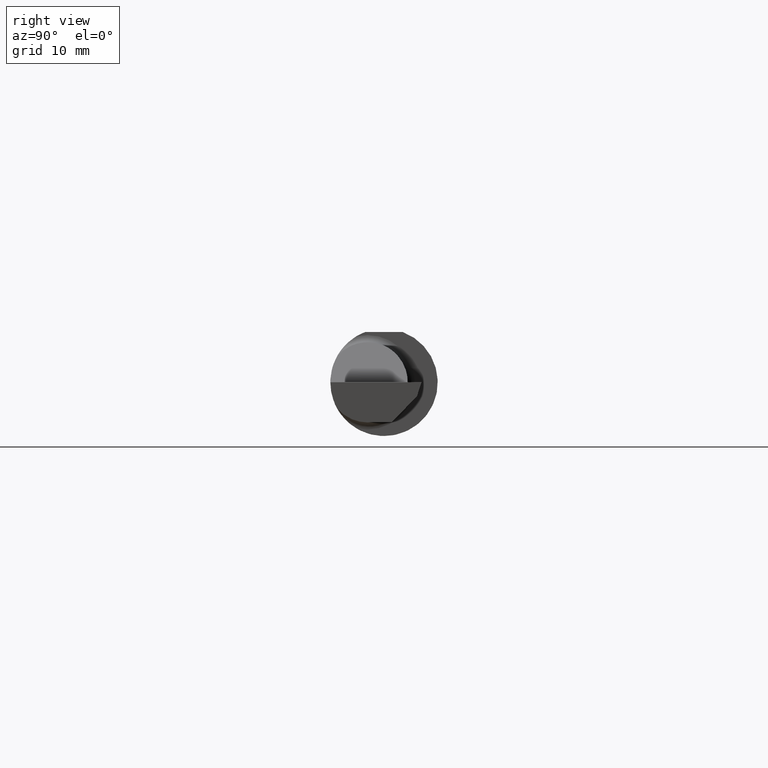
[diagram: clean part render]
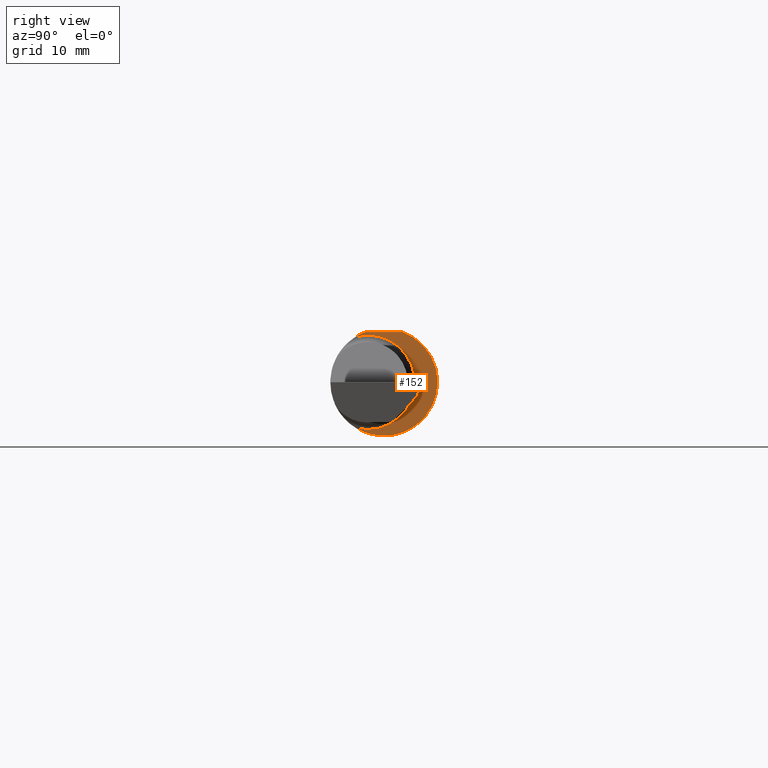
[diagram: same view with one face highlighted and labeled with its STEP entity id]
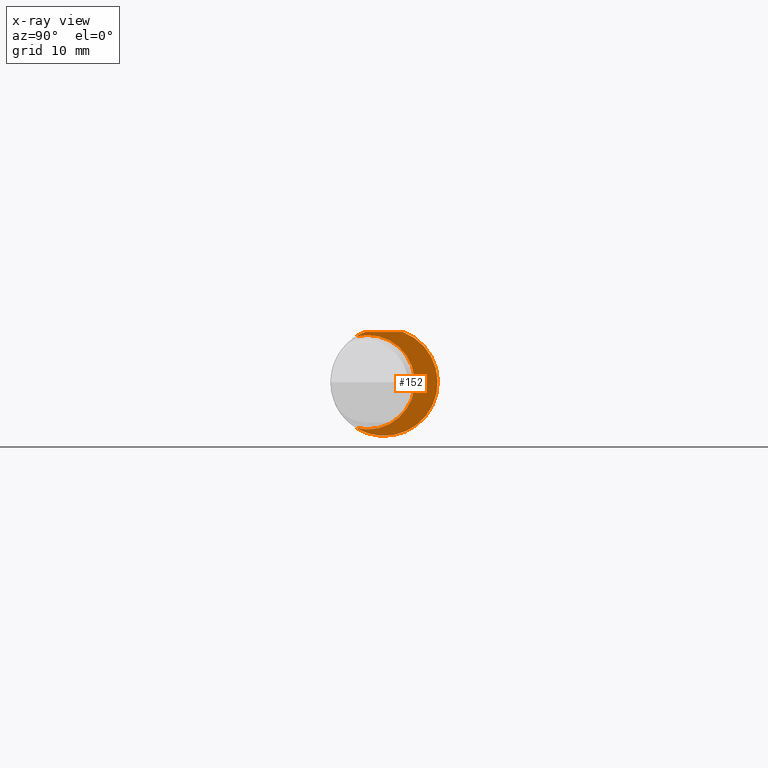
[diagram: x-ray of the same camera — body ghosted, the highlighted face saturated]
A machine part, right view. The second image highlights one B-rep face of the part: STEP entity #152.
The next image is the same camera in x-ray: the body ghosted, the highlighted face saturated — about 3% of this face is hidden behind the body in this view.
In plain terms, the highlighted planar face has unit normal (1, 0, 0).
Its self-contained STEP definition (entity closure, byte-faithful):
#12 = AXIS2_PLACEMENT_3D ( 'NONE', #72, #548, #218 ) ;
#19 = ORIENTED_EDGE ( 'NONE', *, *, #92, .T. ) ;
#32 = CIRCLE ( 'NONE', #151, 0.1873499999999999888 ) ;
#34 = ORIENTED_EDGE ( 'NONE', *, *, #132, .T. ) ;
#67 = DIRECTION ( 'NONE',  ( 0.000000000000000000, 1.000000000000000000, 0.000000000000000000 ) ) ;
#72 = CARTESIAN_POINT ( 'NONE',  ( 1.550000000000000044, -0.05740000000000000657, 0.000000000000000000 ) ) ;
#76 = AXIS2_PLACEMENT_3D ( 'NONE', #465, #230, #606 ) ;
#92 = EDGE_CURVE ( 'NONE', #244, #334, #32, .T. ) ;
#120 = CARTESIAN_POINT ( 'NONE',  ( 1.550000000000000044, -0.09715400696864107122, 0.1601908905959925078 ) ) ;
#132 = EDGE_CURVE ( 'NONE', #514, #148, #478, .T. ) ;
#144 = CIRCLE ( 'NONE', #12, 0.1650500000000000023 ) ;
#148 = VERTEX_POINT ( 'NONE', #120 ) ;
#149 = DIRECTION ( 'NONE',  ( 6.829619984160658046E-18, -1.000000000000000000, 1.438723400918613551E-16 ) ) ;
#151 = AXIS2_PLACEMENT_3D ( 'NONE', #270, #264, #409 ) ;
#152 = ADVANCED_FACE ( 'NONE', ( #317 ), #509, .T. ) ;
#169 = CARTESIAN_POINT ( 'NONE',  ( 1.550000000000000044, -0.06597272163553659363, 0.1753499999999999781 ) ) ;
#218 = DIRECTION ( 'NONE',  ( 0.000000000000000000, -1.000000000000000000, 0.000000000000000000 ) ) ;
#230 = DIRECTION ( 'NONE',  ( 1.000000000000000000, 6.829619984160658046E-18, 0.000000000000000000 ) ) ;
#238 = EDGE_LOOP ( 'NONE', ( #19, #510, #34, #324 ) ) ;
#244 = VERTEX_POINT ( 'NONE', #247 ) ;
#247 = CARTESIAN_POINT ( 'NONE',  ( 1.550000000000000044, -0.09715400696864107122, -0.1601908905959925078 ) ) ;
#253 = CARTESIAN_POINT ( 'NONE',  ( 1.550000000000000044, 0.2373500000000000332, 0.1753499999999999504 ) ) ;
#264 = DIRECTION ( 'NONE',  ( 1.000000000000000000, 6.829619984160658046E-18, 0.000000000000000000 ) ) ;
#265 = VECTOR ( 'NONE', #149, 39.37007874015748143 ) ;
#270 = CARTESIAN_POINT ( 'NONE',  ( 1.550000000000000044, 0.000000000000000000, 0.000000000000000000 ) ) ;
#317 = FACE_OUTER_BOUND ( 'NONE', #238, .T. ) ;
#324 = ORIENTED_EDGE ( 'NONE', *, *, #498, .T. ) ;
#334 = VERTEX_POINT ( 'NONE', #616 ) ;
#358 = EDGE_CURVE ( 'NONE', #334, #514, #391, .T. ) ;
#365 = DIRECTION ( 'NONE',  ( 1.000000000000000000, 6.829619984160658046E-18, 0.000000000000000000 ) ) ;
#391 = LINE ( 'NONE', #253, #265 ) ;
#409 = DIRECTION ( 'NONE',  ( 0.000000000000000000, 1.000000000000000000, 0.000000000000000000 ) ) ;
#465 = CARTESIAN_POINT ( 'NONE',  ( 1.550000000000000044, 0.1076499999999999818, 0.000000000000000000 ) ) ;
#478 = CIRCLE ( 'NONE', #541, 0.1873499999999999888 ) ;
#498 = EDGE_CURVE ( 'NONE', #148, #244, #144, .T. ) ;
#506 = CARTESIAN_POINT ( 'NONE',  ( 1.550000000000000044, 0.000000000000000000, 0.000000000000000000 ) ) ;
#509 = PLANE ( 'NONE',  #76 ) ;
#510 = ORIENTED_EDGE ( 'NONE', *, *, #358, .T. ) ;
#514 = VERTEX_POINT ( 'NONE', #169 ) ;
#541 = AXIS2_PLACEMENT_3D ( 'NONE', #506, #365, #67 ) ;
#548 = DIRECTION ( 'NONE',  ( -1.000000000000000000, -6.829619984160658046E-18, -0.000000000000000000 ) ) ;
#606 = DIRECTION ( 'NONE',  ( -6.829619984160658046E-18, 1.000000000000000000, 0.000000000000000000 ) ) ;
#616 = CARTESIAN_POINT ( 'NONE',  ( 1.550000000000000044, 0.06597272163553663527, 0.1753499999999999781 ) ) ;